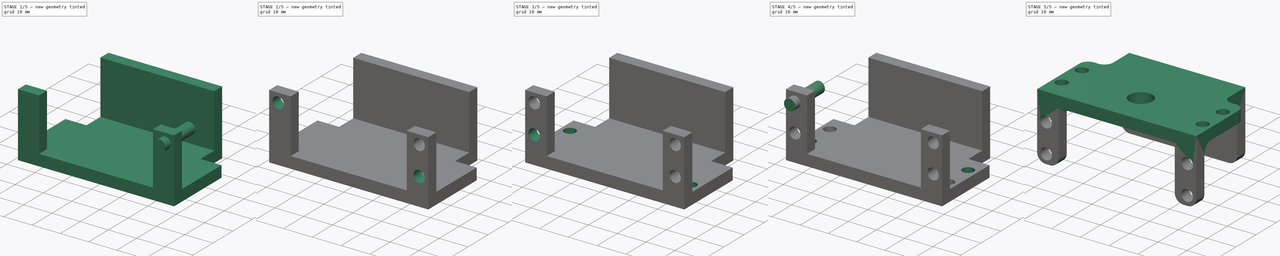
[diagram: build sequence overview — one tinted view per stage of 5, left to right]
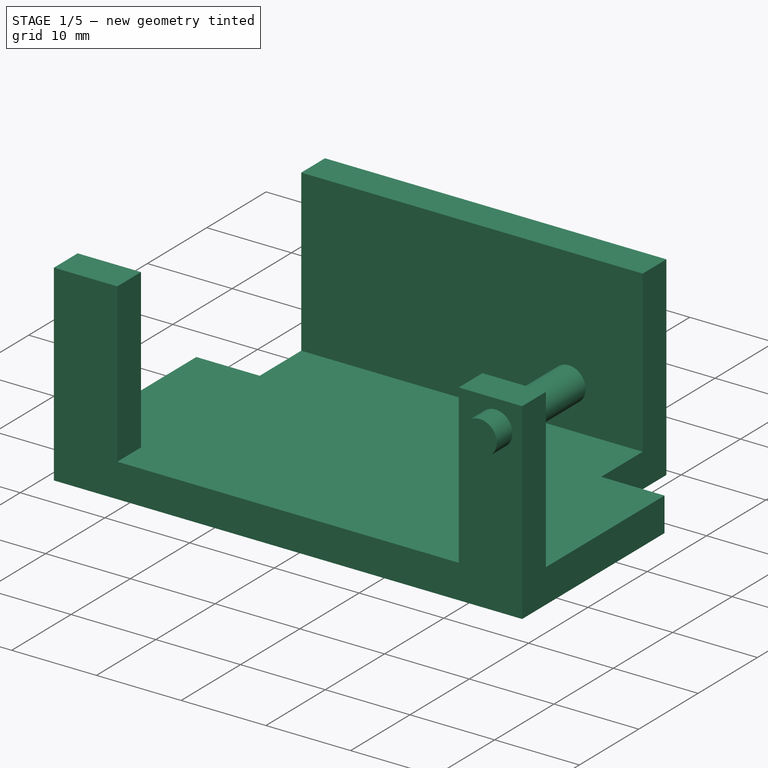
[diagram: stage 1 of 5 — iso view after this stage's code; geometry added in this stage tinted green]
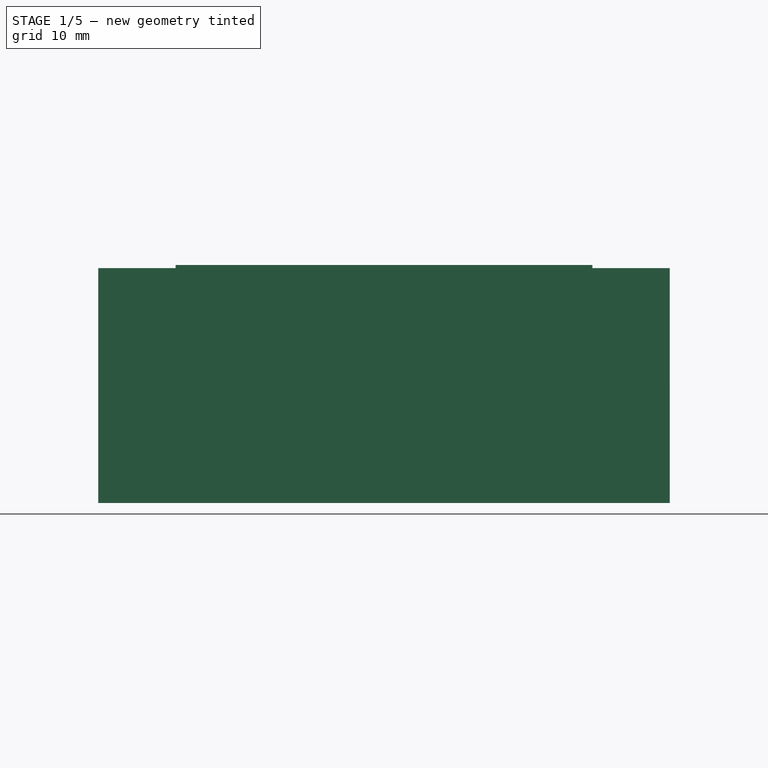
[diagram: stage 1 of 5 — front view after this stage's code; geometry added in this stage tinted green]
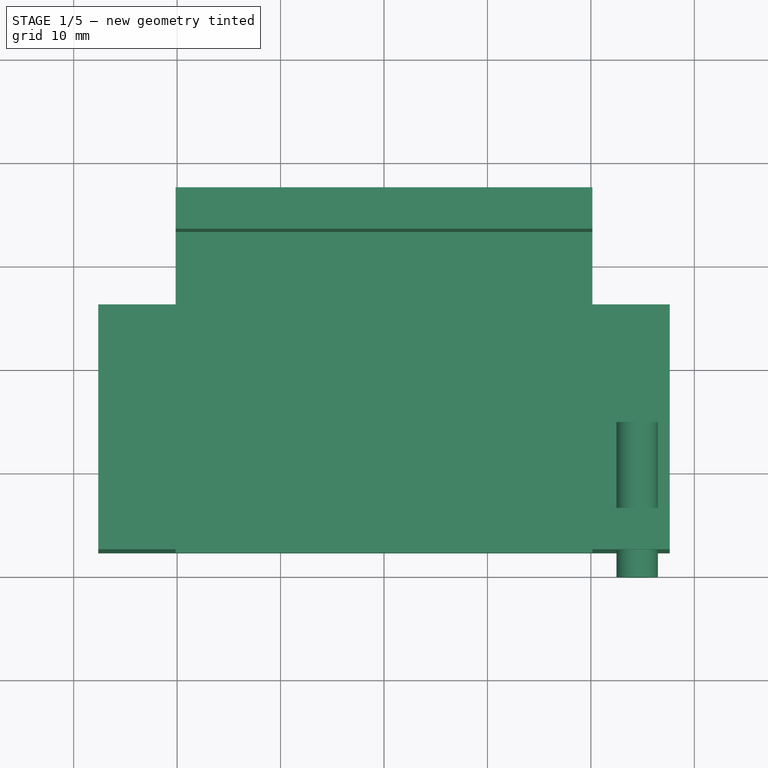
[diagram: stage 1 of 5 — top view after this stage's code; geometry added in this stage tinted green]
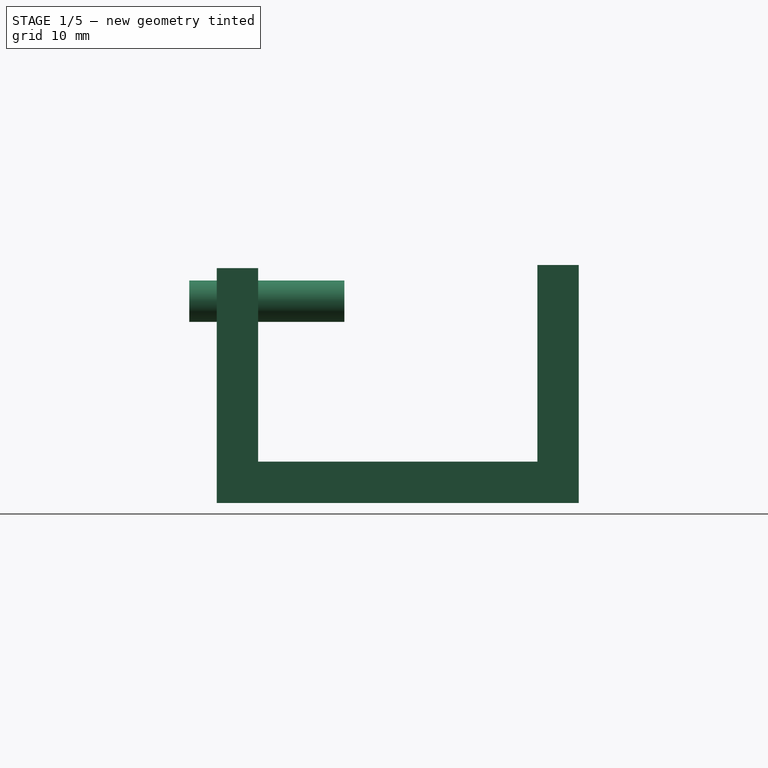
[diagram: stage 1 of 5 — right view after this stage's code; geometry added in this stage tinted green]
FCSTD DOCUMENT  (FreeCAD 0.16R6706 (Git))
Label: pieza1invv1
License: CreativeCommons Attribution-ShareAlike
LicenseURL: http://creativecommons.org/licenses/by-sa/4.0/
objects: Part::Cut×12, Part::Cylinder×10, Part::Feature×3, Sketcher::SketchObject×2, PartDesign::Pad×2, Part::Fillet×2, Part::Box×1, Part::MultiFuse×1
note: 35 computed .brp shape members not serialized (recipe doc carries the construction recipe); baked Part::Feature solids carry a one-line shape summary decoded from their .brp

FEATURE [Sketcher::SketchObject] Sketch002
  Placement = pos=(-20.15,1,0) rot=(0.57735,0.57735,0.57735;2.0944rad)
  sketch-geometry (6):
    g0: LineSegment StartX=22.3 StartY=18.5 StartZ=0 EndX=26.3 EndY=18.5 EndZ=0
    g1: LineSegment StartX=26.3 StartY=18.5 StartZ=0 EndX=26.3 EndY=-4.5 EndZ=0
    g2: LineSegment StartX=26.3 StartY=-4.5 StartZ=0 EndX=-3.7 EndY=-4.5 EndZ=0
    g3: LineSegment StartX=-3.7 StartY=-4.5 StartZ=0 EndX=-3.7 EndY=-0.5 EndZ=0
    g4: LineSegment StartX=-3.7 StartY=-0.5 StartZ=0 EndX=22.3 EndY=-0.5 EndZ=0
    g5: LineSegment StartX=22.3 StartY=-0.5 StartZ=0 EndX=22.3 EndY=18.5 EndZ=0
  constraints (18):
    c: Coincident(g0,g1)
    c: Coincident(g1,g2)
    c: Coincident(g2,g3)
    c: Coincident(g3,g4)
    c: Coincident(g4,g5)
    c: Coincident(g5,g0)
    c: Horizontal(g0)
    c: Horizontal(g4)
    c: Horizontal(g2)
    c: Vertical(g5)
    c: Vertical(g1)
    c: Vertical(g3)
    c: DistanceX(g0,g0) = 4
    c: DistanceX(g2,g2) = 30
    c: DistanceY(g1,g1) = 23
    c: Equal(g0,g3)
    c: DistanceX(g3,g-1) = 3.7
    c: DistanceY(g4,g-1) = 0.5
FEATURE [PartDesign::Pad] Pad002
  Length = 40.3
  Length2 = 100
  Placement = pos=(-20.15,1,0) rot=(0.57735,0.57735,0.57735;2.0944rad)
  Sketch = -> Sketch002
  Type = 0
FEATURE [Sketcher::SketchObject] Sketch003
  Placement = pos=(-27.63,0,0) rot=(0.57735,0.57735,0.57735;2.0944rad)
  sketch-geometry (6):
    g0: LineSegment StartX=-7.7 StartY=-4.5 StartZ=0 EndX=16.3 EndY=-4.5 EndZ=0
    g1: LineSegment StartX=16.3 StartY=-4.5 StartZ=0 EndX=16.3 EndY=-0.5 EndZ=0
    g2: LineSegment StartX=16.3 StartY=-0.5 StartZ=0 EndX=-3.7 EndY=-0.5 EndZ=0
    g3: LineSegment StartX=-3.7 StartY=-0.5 StartZ=0 EndX=-3.7 EndY=18.2 EndZ=0
    g4: LineSegment StartX=-3.7 StartY=18.2 StartZ=0 EndX=-7.7 EndY=18.2 EndZ=0
    g5: LineSegment StartX=-7.7 StartY=18.2 StartZ=0 EndX=-7.7 EndY=-4.5 EndZ=0
  constraints (18):
    c: Coincident(g0,g1)
    c: Coincident(g1,g2)
    c: Coincident(g2,g3)
    c: Coincident(g3,g4)
    c: Coincident(g4,g5)
    c: Coincident(g5,g0)
    c: Horizontal(g0)
    c: Horizontal(g2)
    c: Horizontal(g4)
    c: Vertical(g5)
    c: Vertical(g3)
    c: Vertical(g1)
    c: Equal(g4,g1)
    c: DistanceX(g4,g4) = 4
    c: DistanceX(g0,g-1) = 7.7
    c: DistanceY(g1,g-1) = 0.5
    c: DistanceY(g5,g5) = 22.7
    c: DistanceX(g0,g0) = 24
FEATURE [PartDesign::Pad] Pad003
  Length = 55.26
  Length2 = 100
  Placement = pos=(-27.63,0,0) rot=(0.57735,0.57735,0.57735;2.0944rad)
  Sketch = -> Sketch003
  Type = 0
FEATURE [Part::Box] Box  label="Cubo"
  Height = 25
  Length = 40.3
  Placement = pos=(-20.15,-12.7,-0.5) rot=(0,0,1;0rad)
  Width = 15
FEATURE [Part::Cut] Cut
  Base = -> Pad003
  Tool = -> Box
FEATURE [Part::MultiFuse] Fusion
  Shapes = -> [Cut,Pad002]
FEATURE [Part::Cylinder] Cylinder  label="Cilindro"
  Angle = 360
  Height = 15
  Placement = pos=(24.48,4.65,15.01) rot=(1,0,0;1.5708rad)
  Radius = 2
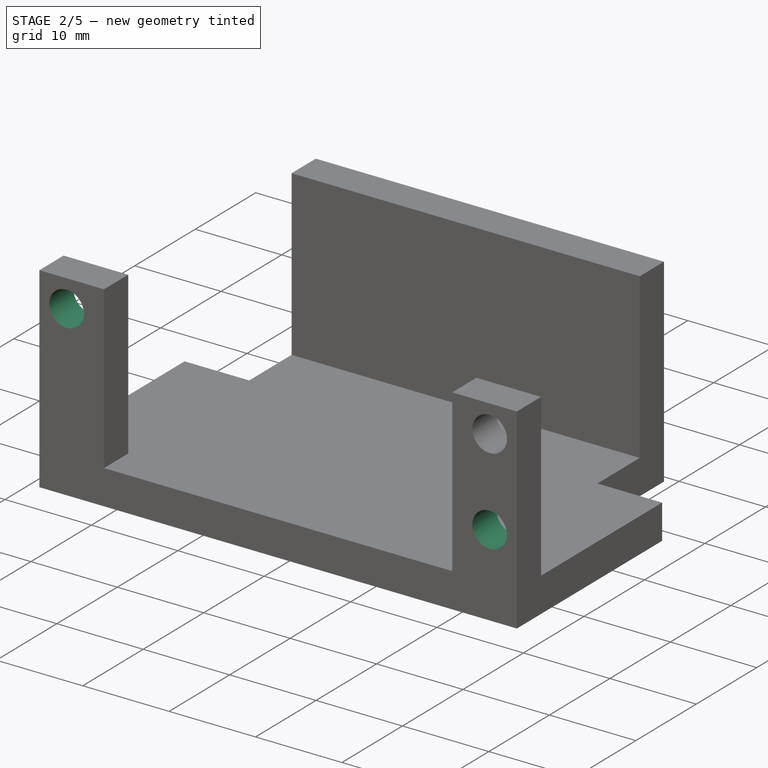
[diagram: stage 2 of 5 — iso view after this stage's code; geometry added in this stage tinted green]
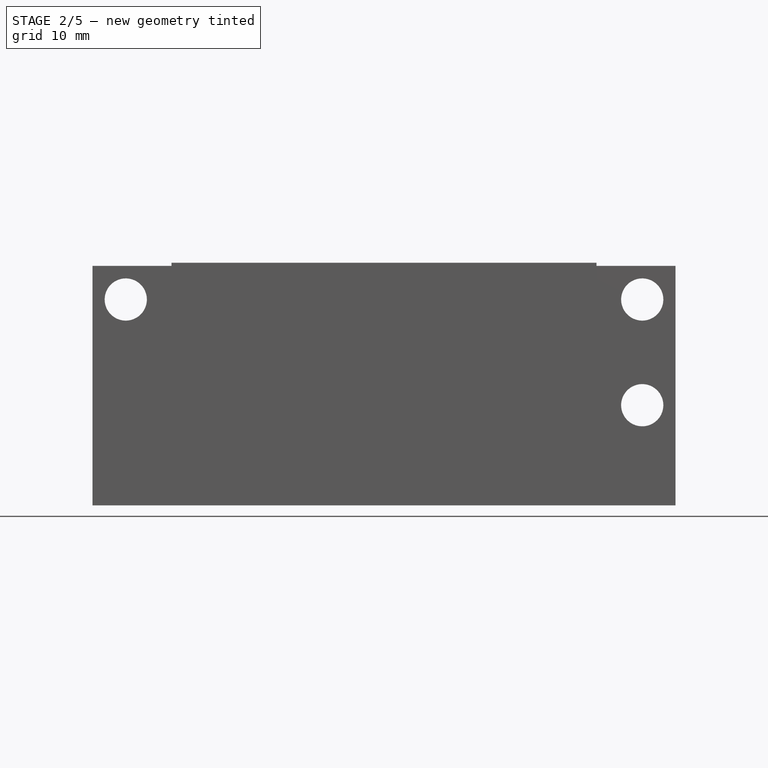
[diagram: stage 2 of 5 — front view after this stage's code; geometry added in this stage tinted green]
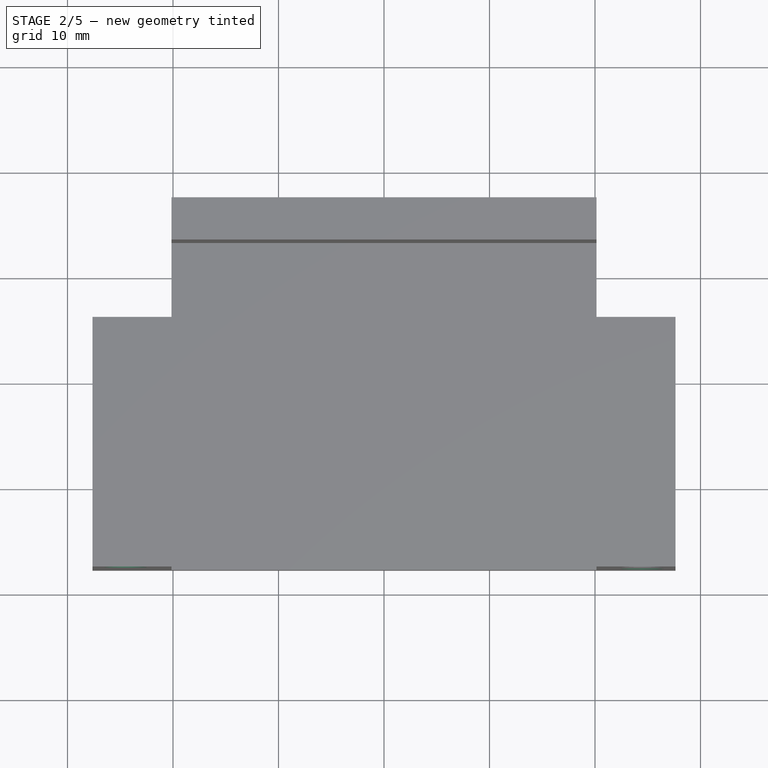
[diagram: stage 2 of 5 — top view after this stage's code; geometry added in this stage tinted green]
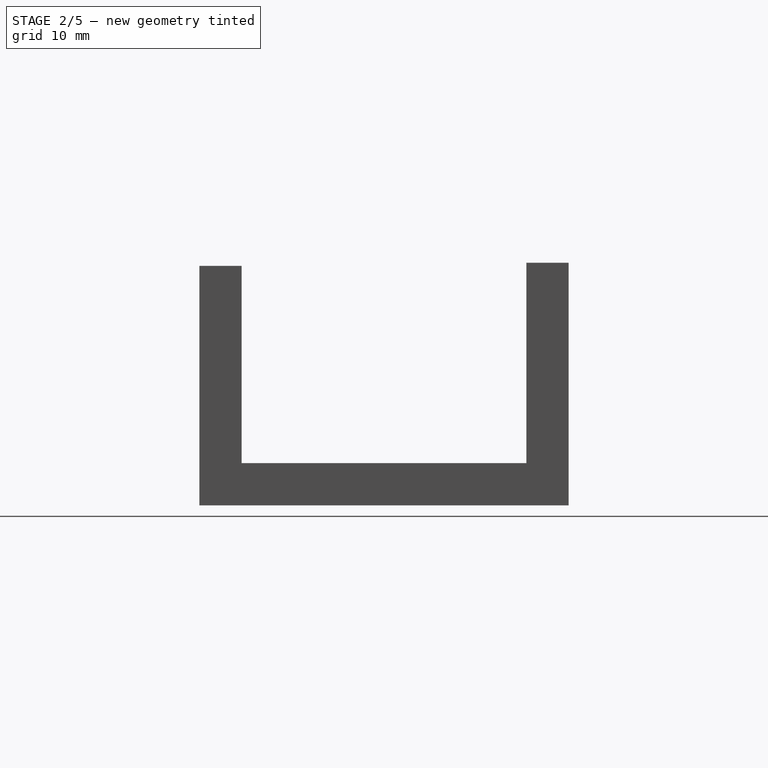
[diagram: stage 2 of 5 — right view after this stage's code; geometry added in this stage tinted green]
FEATURE [Part::Cylinder] Cylinder001  label="Cilindro001"
  Angle = 360
  Height = 15
  Placement = pos=(24.48,4.65,4.99) rot=(1,0,0;1.5708rad)
  Radius = 2
FEATURE [Part::Cylinder] Cylinder002  label="Cilindro002"
  Angle = 360
  Height = 15
  Placement = pos=(-24.48,4.65,15.01) rot=(1,0,0;1.5708rad)
  Radius = 2
FEATURE [Part::Cut] Cut001
  Base = -> Fusion
  Tool = -> Cylinder
FEATURE [Part::Cut] Cut002
  Base = -> Cut001
  Tool = -> Cylinder001
FEATURE [Part::Cut] Cut003
  Base = -> Cut002
  Tool = -> Cylinder002
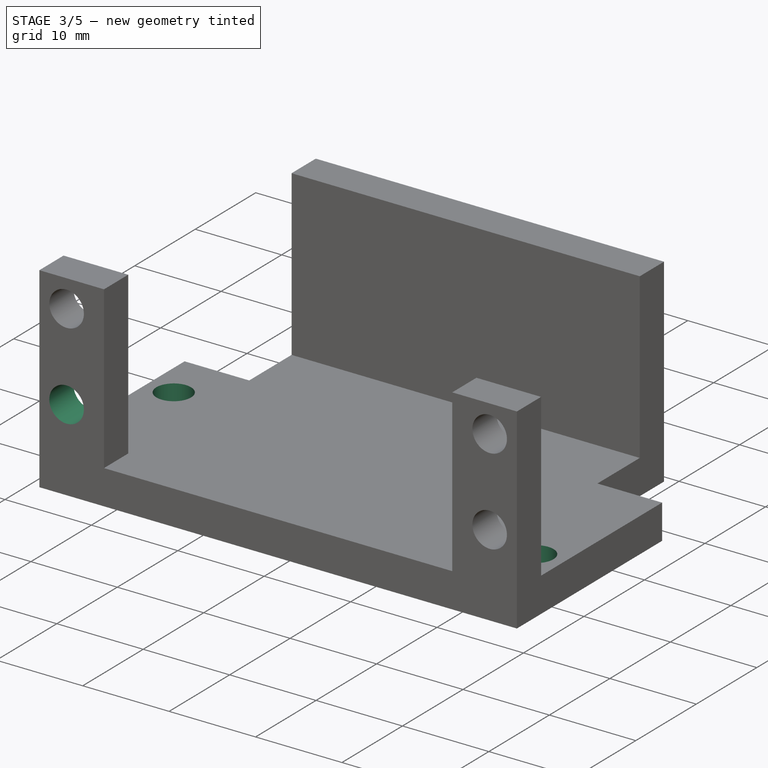
[diagram: stage 3 of 5 — iso view after this stage's code; geometry added in this stage tinted green]
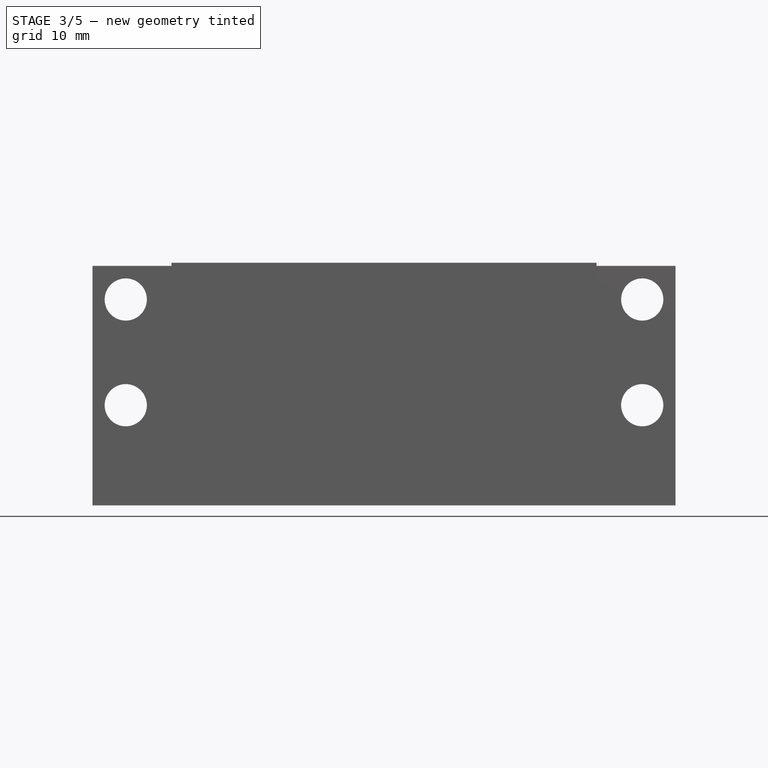
[diagram: stage 3 of 5 — front view after this stage's code; geometry added in this stage tinted green]
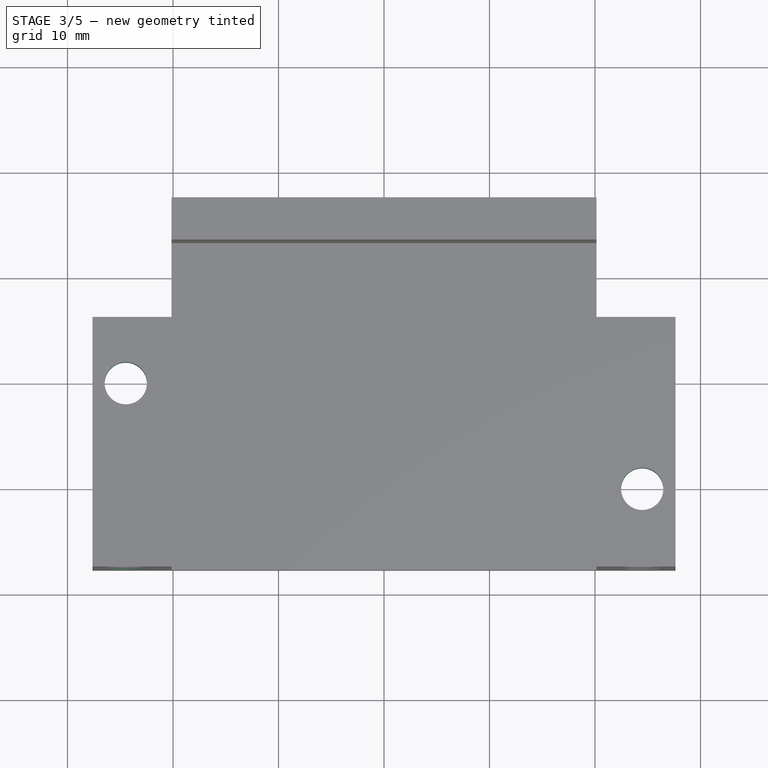
[diagram: stage 3 of 5 — top view after this stage's code; geometry added in this stage tinted green]
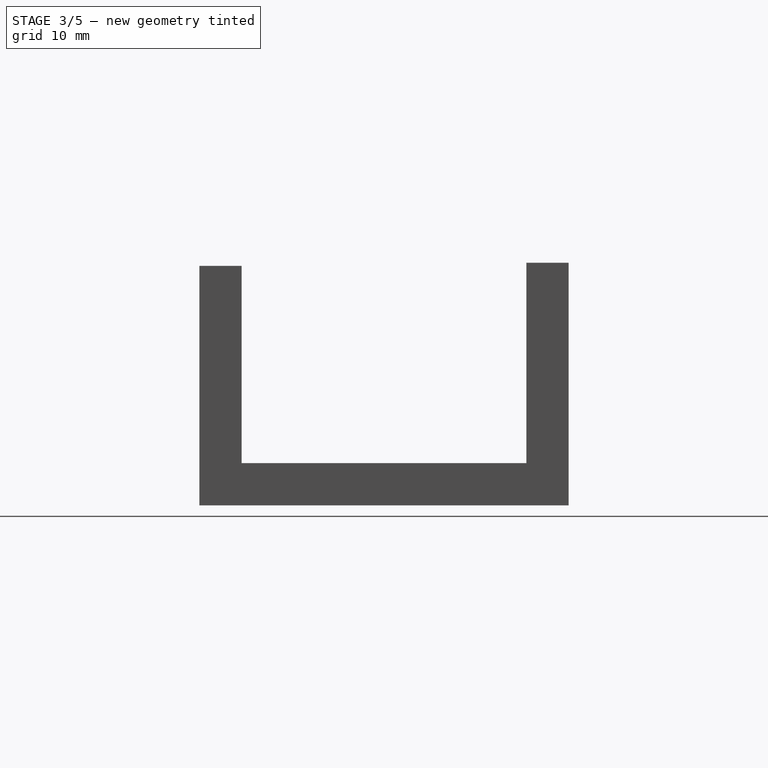
[diagram: stage 3 of 5 — right view after this stage's code; geometry added in this stage tinted green]
FEATURE [Part::Cylinder] Cylinder003  label="Cilindro003"
  Angle = 360
  Height = 15
  Placement = pos=(-24.48,4.65,4.99) rot=(1,0,0;1.5708rad)
  Radius = 2
FEATURE [Part::Cylinder] Cylinder004  label="Cilindro004"
  Angle = 360
  Height = 15
  Placement = pos=(-24.48,10.01,-12.65) rot=(0,0,1;0rad)
  Radius = 2
FEATURE [Part::Cylinder] Cylinder005  label="Cilindro005"
  Angle = 360
  Height = 15
  Placement = pos=(24.48,-0.01,-12.65) rot=(0,0,1;0rad)
  Radius = 2
FEATURE [Part::Cut] Cut004
  Base = -> Cut003
  Tool = -> Cylinder003
FEATURE [Part::Cut] Cut005
  Base = -> Cut004
  Tool = -> Cylinder004
FEATURE [Part::Cut] Cut006
  Base = -> Cut005
  Tool = -> Cylinder005
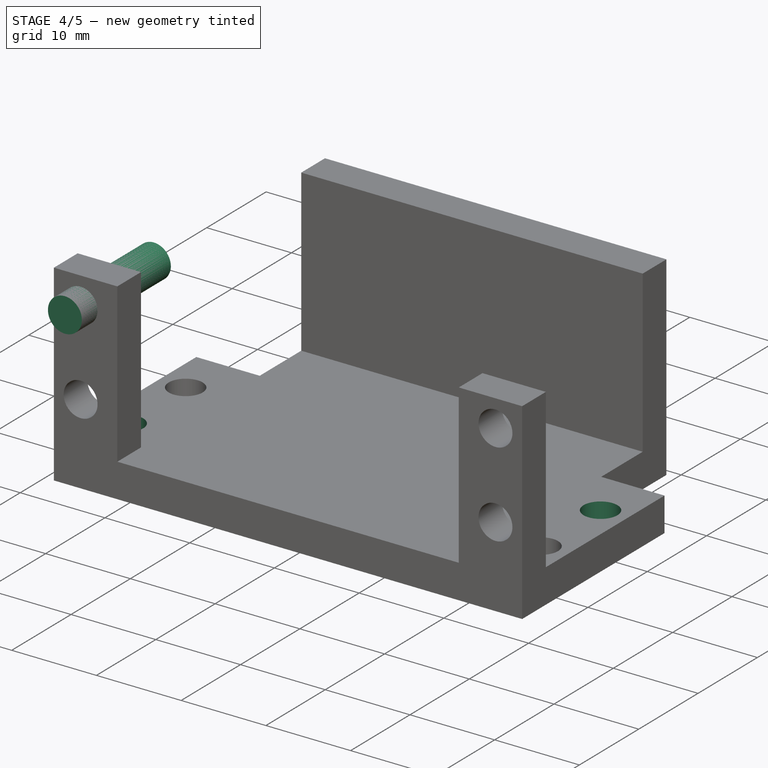
[diagram: stage 4 of 5 — iso view after this stage's code; geometry added in this stage tinted green]
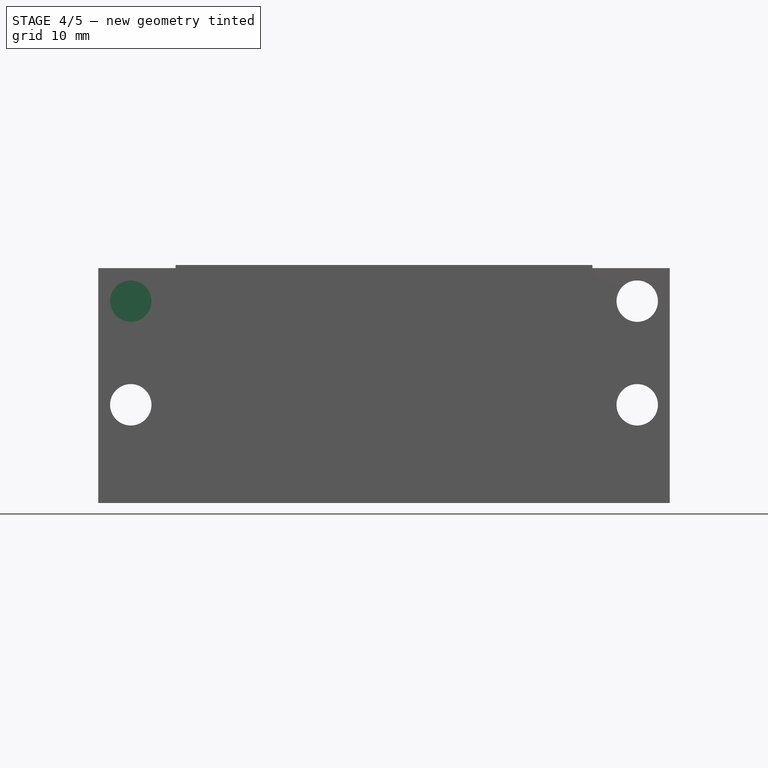
[diagram: stage 4 of 5 — front view after this stage's code; geometry added in this stage tinted green]
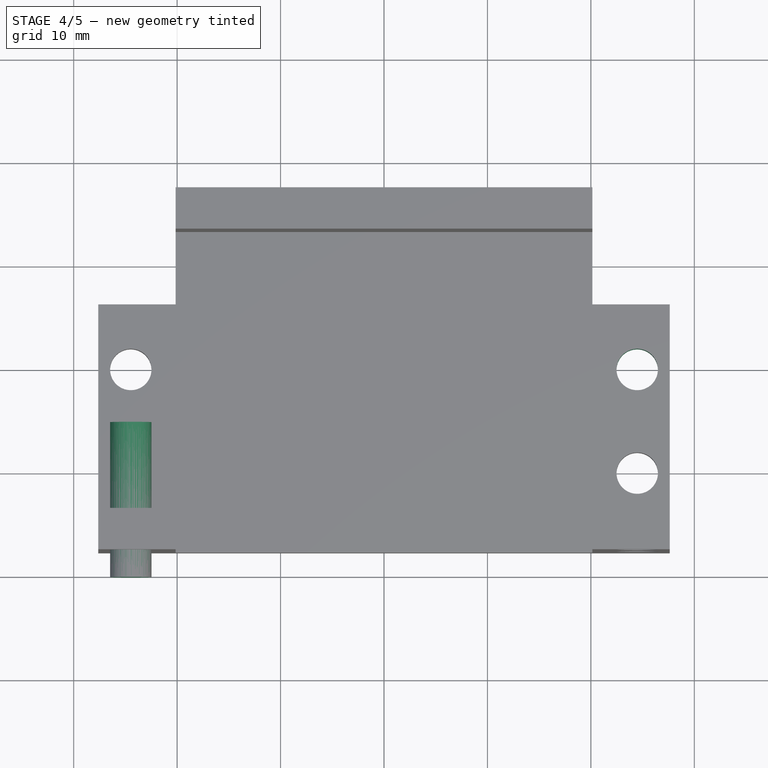
[diagram: stage 4 of 5 — top view after this stage's code; geometry added in this stage tinted green]
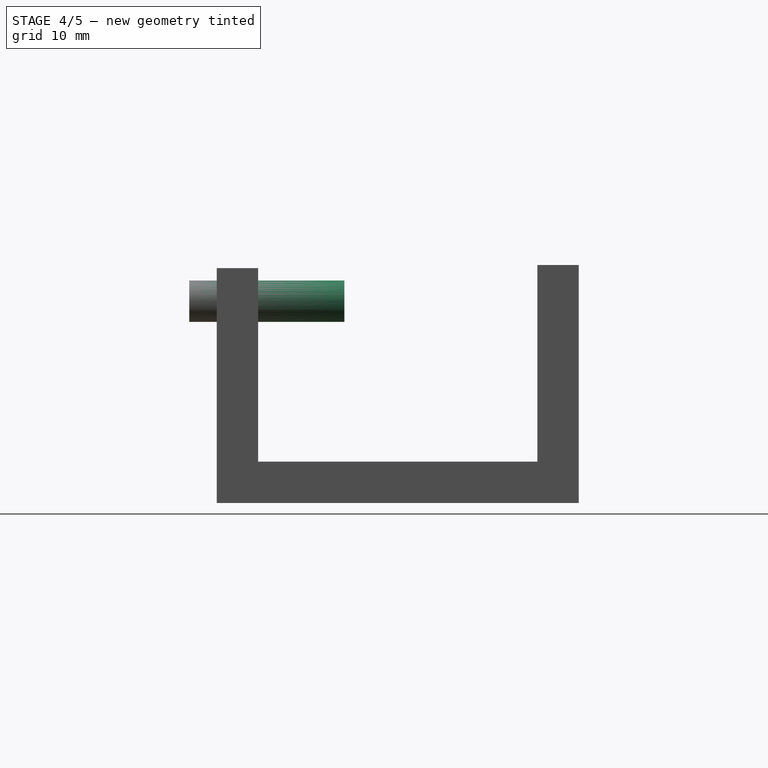
[diagram: stage 4 of 5 — right view after this stage's code; geometry added in this stage tinted green]
FEATURE [Part::Cylinder] Cylinder006  label="Cilindro006"
  Angle = 360
  Height = 15
  Placement = pos=(-24.48,-0.01,-12.65) rot=(0,0,1;0rad)
  Radius = 2
FEATURE [Part::Cylinder] Cylinder007  label="Cilindro007"
  Angle = 360
  Height = 15
  Placement = pos=(24.48,10.01,-12.65) rot=(0,0,1;0rad)
  Radius = 2
FEATURE [Part::Cylinder] Cylinder015  label="Cilindro015"
  Angle = 360
  Height = 15
  Placement = pos=(-24.48,4.65,15.01) rot=(1,0,0;1.5708rad)
  Radius = 2
FEATURE [Part::Cut] Cut007
  Base = -> Cut006
  Tool = -> Cylinder006
FEATURE [Part::Cut] Cut008
  Base = -> Cut007
  Tool = -> Cylinder007
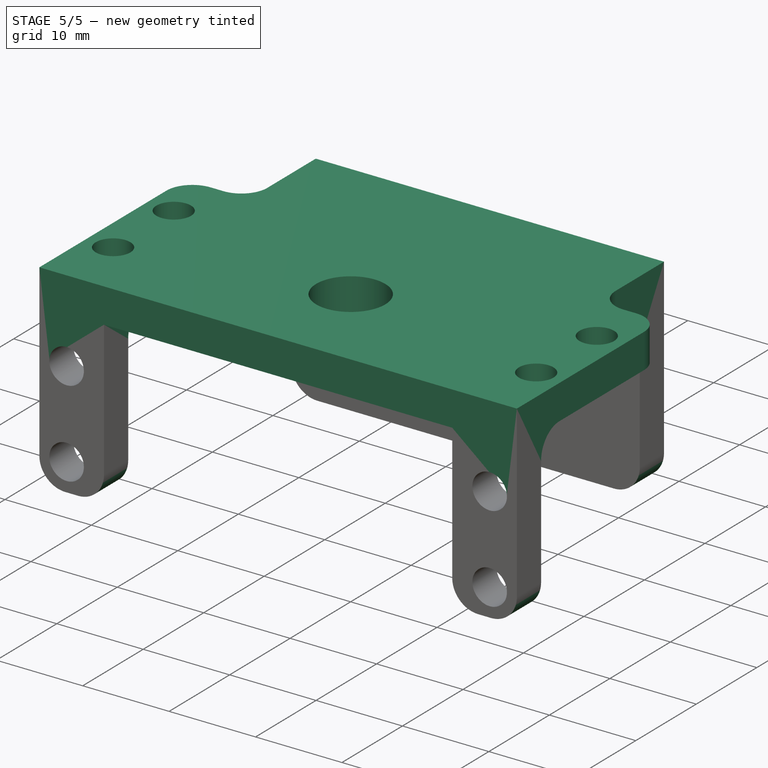
[diagram: stage 5 of 5 — iso view after this stage's code; geometry added in this stage tinted green]
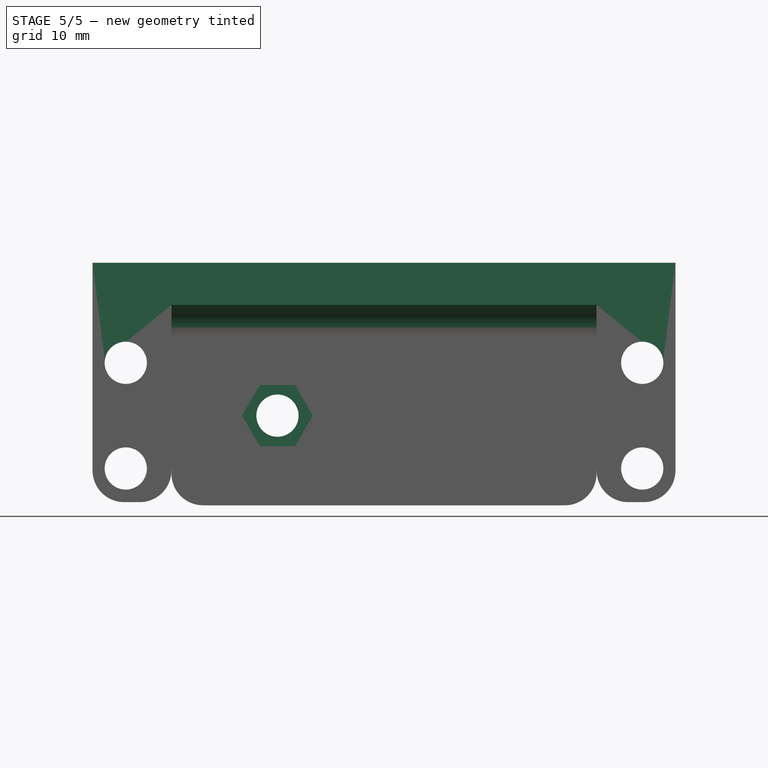
[diagram: stage 5 of 5 — front view after this stage's code; geometry added in this stage tinted green]
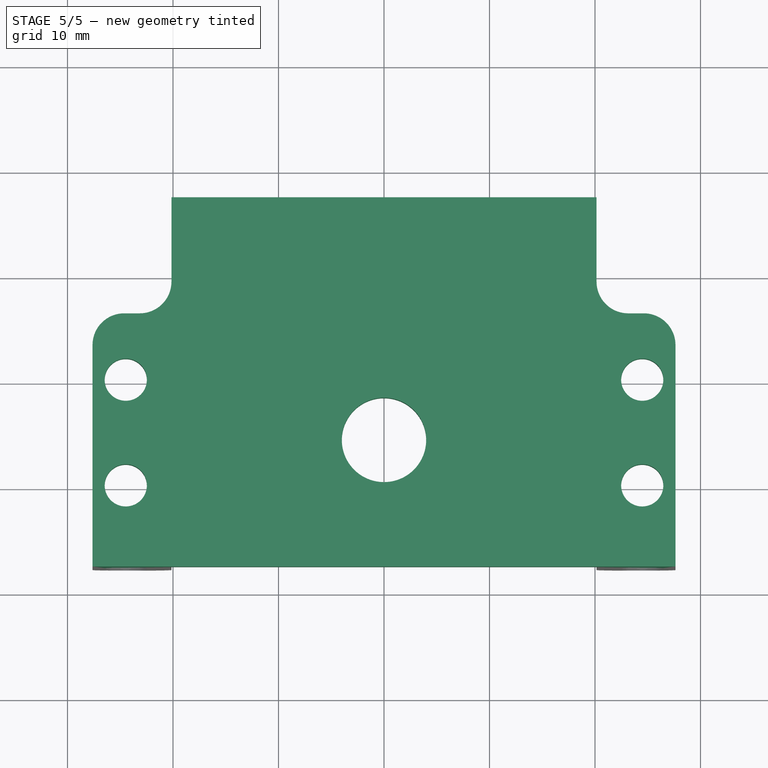
[diagram: stage 5 of 5 — top view after this stage's code; geometry added in this stage tinted green]
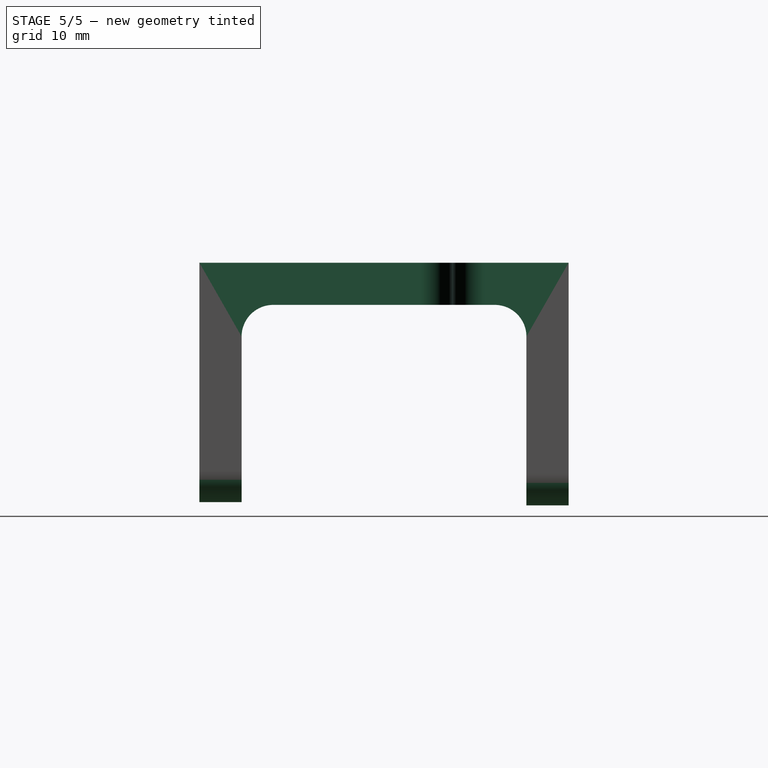
[diagram: stage 5 of 5 — right view after this stage's code; geometry added in this stage tinted green]
FEATURE [Part::Cut] Cut009
  Base = -> Cut008
  Placement = pos=(0,0,20) rot=(0,1,0;3.14159rad)
  Tool = -> Cylinder015
FEATURE [Part::Feature] Clone005001006  label=" taladroTuercaM010"
  Placement = pos=(-10.1,23.15,0) rot=(-1,0,0;1.5708rad)
  shape: bbox 6.7 x 32.25 x 5.802 mm, 10 faces (baked)
FEATURE [Part::Cylinder] Cylinder016  label="Cilindro016"
  Angle = 360
  Height = 10
  Placement = pos=(0,4.3,17.5) rot=(0,0,1;0rad)
  Radius = 4
FEATURE [Part::Feature] Cut010  label="Futaba-3003-body-base"
  Placement = pos=(0,17,10) rot=(0,0.707107,-0.707107;3.14159rad)
  shape: bbox 55.26 x 40.28 x 20 mm, 242 faces (baked)
FEATURE [Part::Cut] Cut011
  Base = -> Cut009
  Tool = -> Clone005001006
FEATURE [Part::Fillet] Fillet
  Base = -> Cut011
  Edges = 10 edges r=3: [Edge3,Edge4,Edge19,Edge22,Edge60,Edge61,Edge63,Edge70,Edge72,Edge85]
FEATURE [Part::Fillet] Fillet001
  Base = -> Fillet
  Edges = 3 edges r=3: [Edge7,Edge34,Edge39]
FEATURE [Part::Cut] Cut012  label="pieza1Inv"
  Base = -> Fillet001
  Tool = -> Cylinder016
FEATURE [Part::Feature] Cut012001  label="csPieza1Inv"
  Placement = pos=(0,0,0) rot=(1,0,0;3.14159rad)
  shape: bbox 55.26 x 35 x 23 mm, 52 faces (baked)
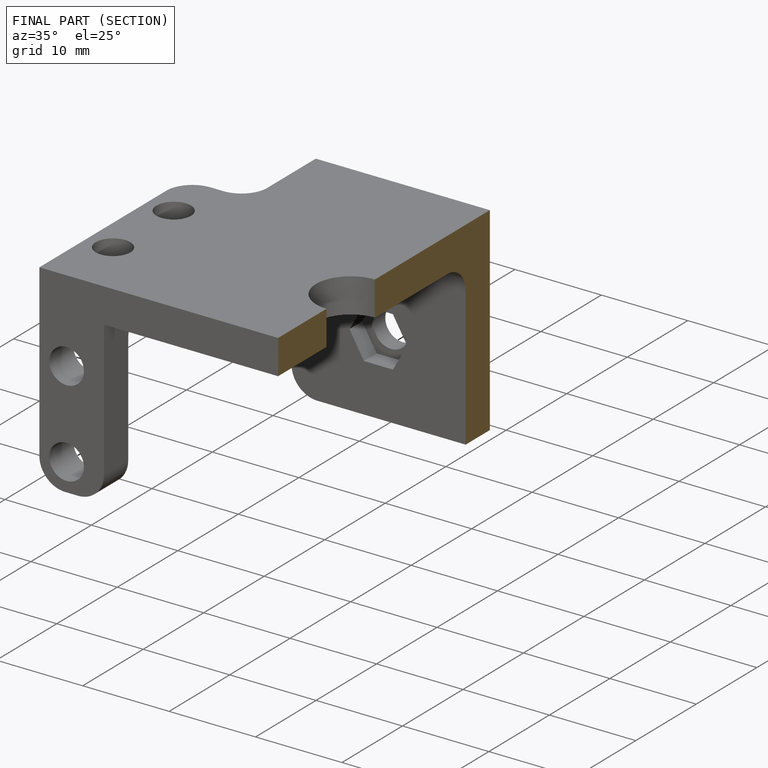
[diagram: finished part — half-section view (interior)]
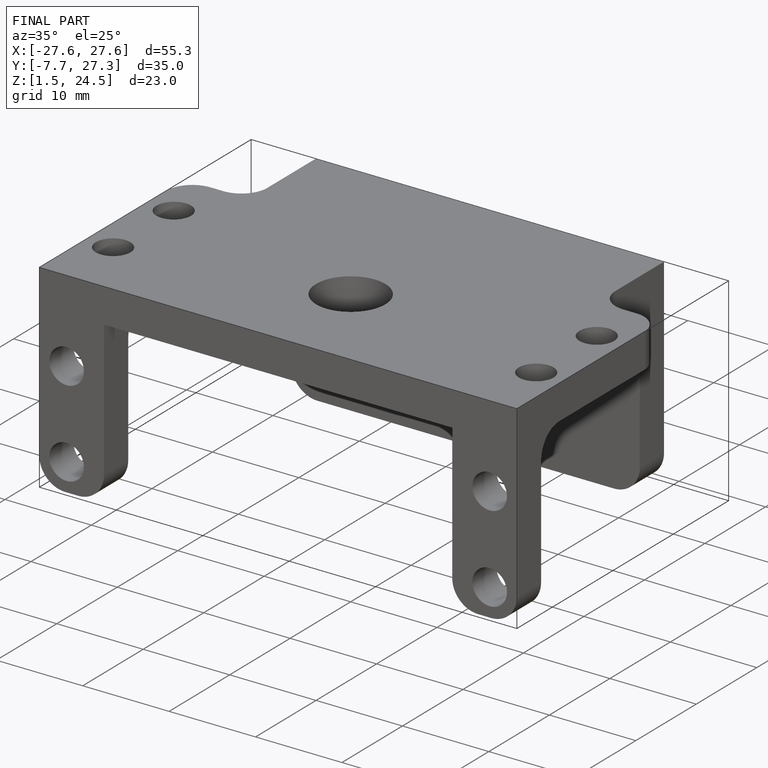
[diagram: finished part — iso view with bounding-box wireframe]
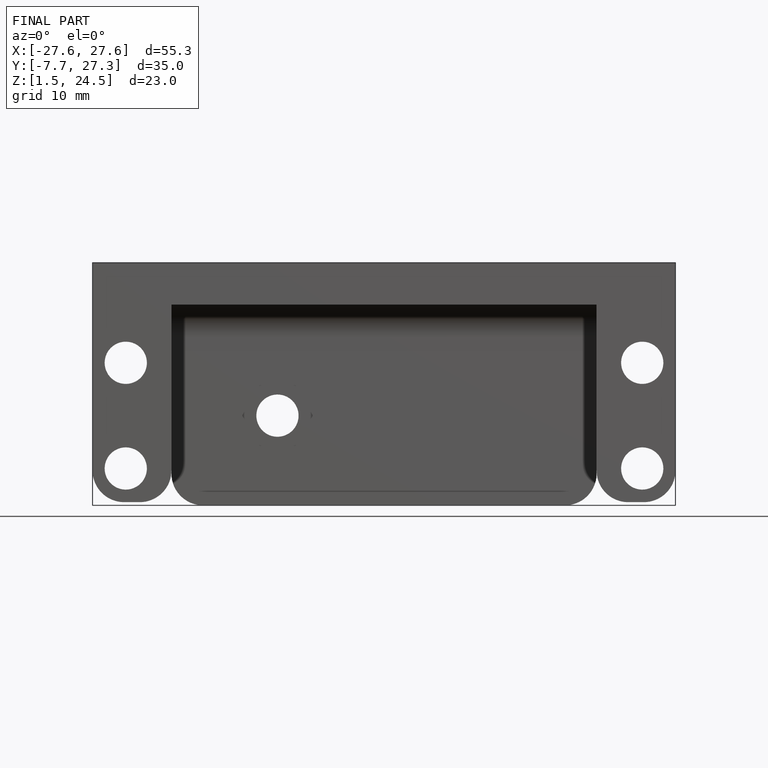
[diagram: finished part — front view with bounding-box wireframe]
